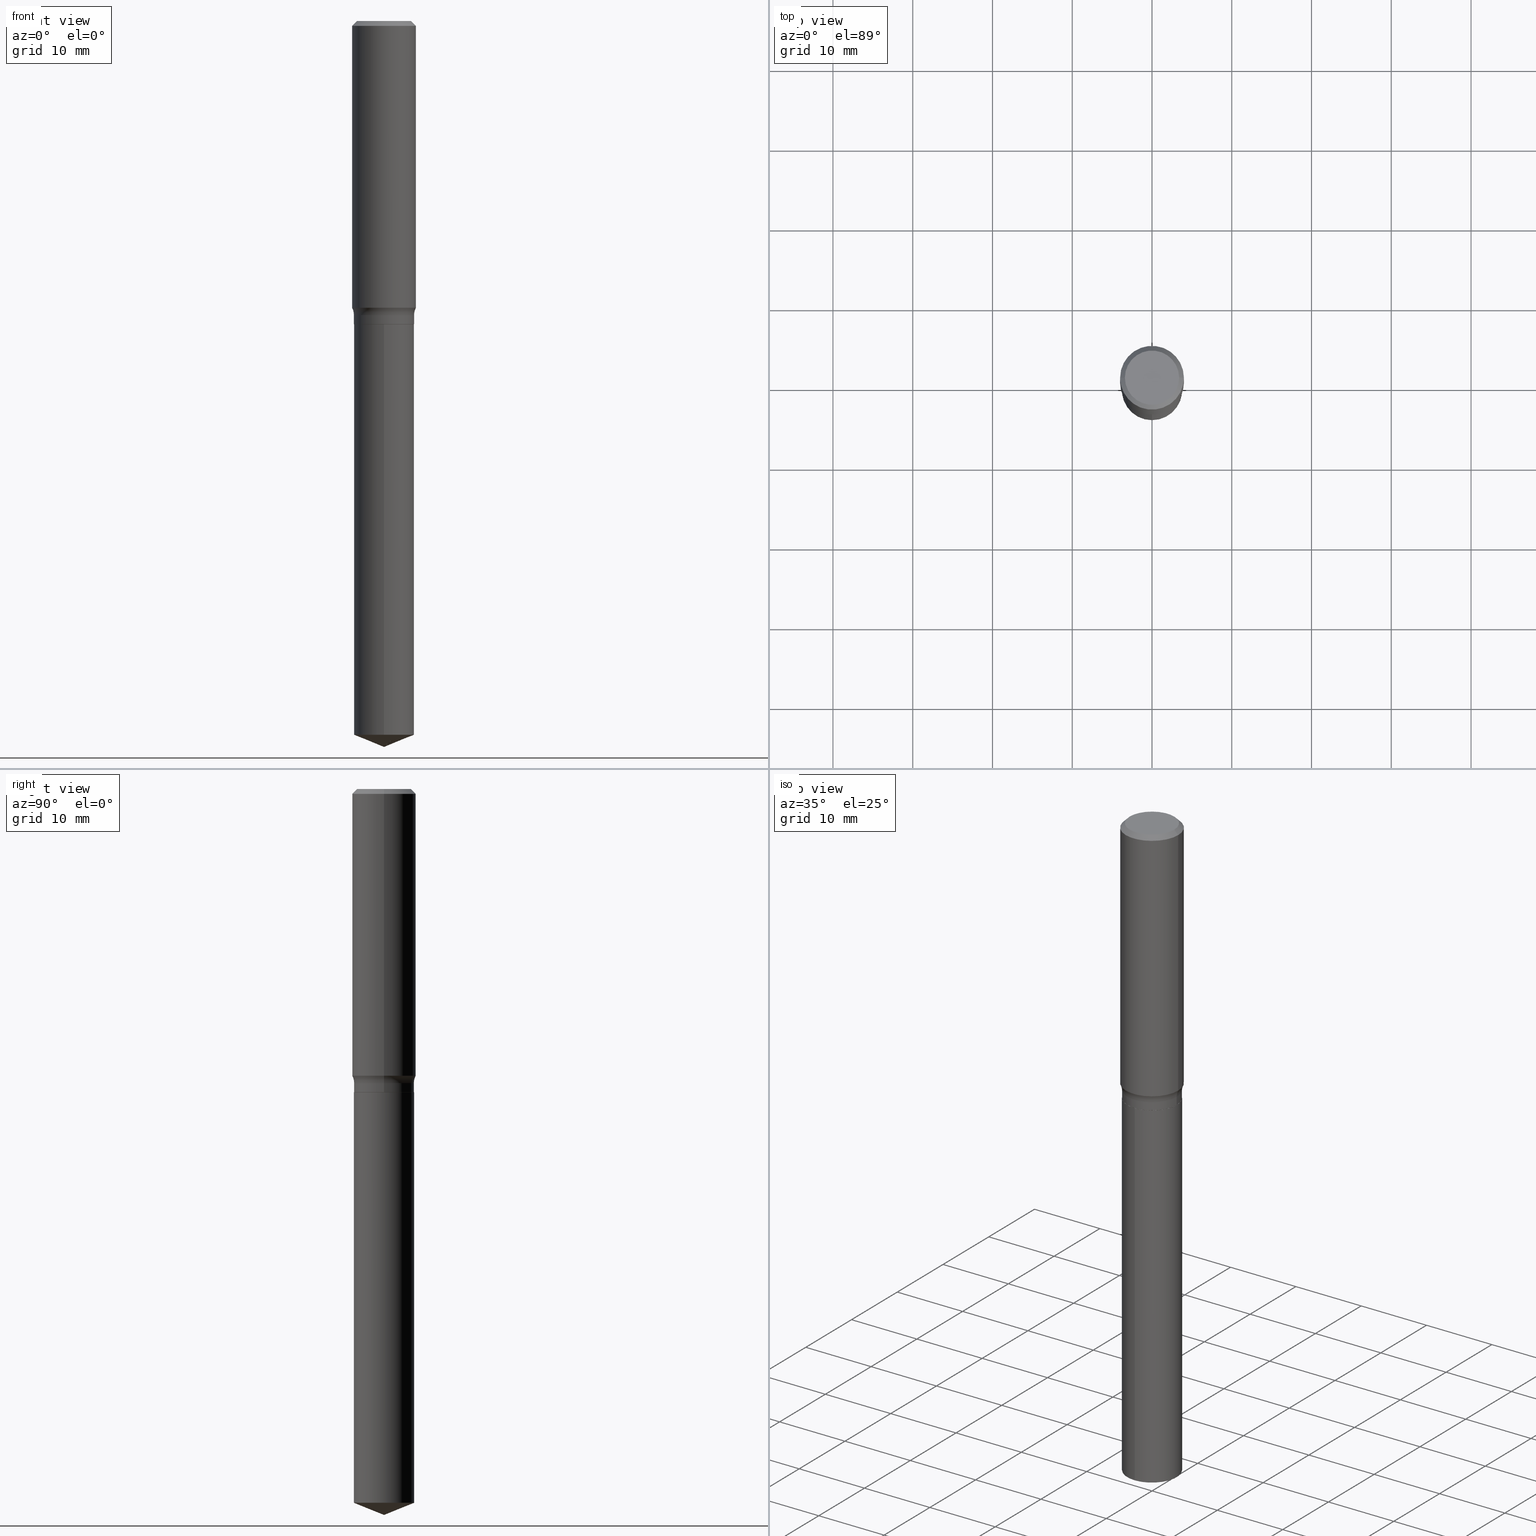
[diagram: canonical four-view strip — front | top / right | iso, engineering-drawing reading convention]
A machine part, canonical four-view strip (front | top / right | iso — engineering-drawing reading convention). The complete STEP part file that produces these views, byte-faithful:
ISO-10303-21;
HEADER;
FILE_DESCRIPTION (( 'STEP AP203' ),
    '1' );
FILE_NAME ('56850.STEP',
    '2024-04-19T14:25:47',
    ( '' ),
    ( '' ),
    'SwSTEP 2.0',
    'SolidWorks 2023',
    '' );
FILE_SCHEMA (( 'CONFIG_CONTROL_DESIGN' ));
ENDSEC;

DATA;
#1 = DIRECTION ( 'NONE',  ( -2.445316723279100245E-29, 3.491699130220610945E-15, 1.000000000000000000 ) ) ;
#2 = AXIS2_PLACEMENT_3D ( 'NONE', #449, #270, #80 ) ;
#3 = CC_DESIGN_APPROVAL ( #16, ( #492 ) ) ;
#4 = LINE ( 'NONE', #218, #61 ) ;
#5 = CLOSED_SHELL ( 'NONE', ( #287, #143, #436, #40, #346 ) ) ;
#6 = AXIS2_PLACEMENT_3D ( 'NONE', #216, #358, #357 ) ;
#7 = CONICAL_SURFACE ( 'NONE', #453, 0.1479499999999999982, 0.7853981633972775267 ) ;
#8 = DIRECTION ( 'NONE',  ( -2.445316723279100245E-29, 3.491699130220610945E-15, 1.000000000000000000 ) ) ;
#9 = ADVANCED_FACE ( 'NONE', ( #11 ), #340, .F. ) ;
#10 = APPROVAL_PERSON_ORGANIZATION ( #404, #16, #284 ) ;
#11 = FACE_OUTER_BOUND ( 'NONE', #373, .T. ) ;
#12 = APPROVAL_STATUS ( 'not_yet_approved' ) ;
#13 = ORIENTED_EDGE ( 'NONE', *, *, #384, .T. ) ;
#14 = CARTESIAN_POINT ( 'NONE',  ( 1.729969723805020089E-29, -7.987705962176350998E-15, -1.496400000000000396 ) ) ;
#15 = COORDINATED_UNIVERSAL_TIME_OFFSET ( 5, 0, .BEHIND. ) ;
#16 = APPROVAL ( #65, 'UNSPECIFIED' ) ;
#17 = DIRECTION ( 'NONE',  ( -2.445468806185136597E-29, 3.491481338843145583E-15, 1.000000000000000000 ) ) ;
#18 = ORIENTED_EDGE ( 'NONE', *, *, #52, .F. ) ;
#19 = CIRCLE ( 'NONE', #344, 0.1575000000000001676 ) ;
#20 = CARTESIAN_POINT ( 'NONE',  ( 3.659399521575439863E-29, -5.224652675444884140E-15, -1.496400000000000396 ) ) ;
#21 = LOCAL_TIME ( 10, 25, 47.00000000000000000, #276 ) ;
#22 = DIRECTION ( 'NONE',  ( 1.000000000000000000, -6.982962677686267499E-15, 4.876176775795936353E-29 ) ) ;
#23 = EDGE_CURVE ( 'NONE', #430, #179, #397, .T. ) ;
#24 = FACE_OUTER_BOUND ( 'NONE', #473, .T. ) ;
#25 = EDGE_LOOP ( 'NONE', ( #343, #134 ) ) ;
#26 = DIRECTION ( 'NONE',  ( 1.000000000000000000, -6.982962677686265133E-15, 0.000000000000000000 ) ) ;
#27 = FACE_OUTER_BOUND ( 'NONE', #426, .T. ) ;
#28 = ORIENTED_EDGE ( 'NONE', *, *, #410, .F. ) ;
#29 = DIRECTION ( 'NONE',  ( -2.445468806185136597E-29, 3.491481338843145583E-15, 1.000000000000000000 ) ) ;
#30 = AXIS2_PLACEMENT_3D ( 'NONE', #237, #49, #56 ) ;
#31 = ADVANCED_FACE ( 'NONE', ( #161 ), #412, .T. ) ;
#32 = CARTESIAN_POINT ( 'NONE',  ( 3.659399521575439863E-29, -5.224652675444884140E-15, -1.496400000000000396 ) ) ;
#33 = PLANE ( 'NONE',  #109 ) ;
#34 = CIRCLE ( 'NONE', #256, 0.1484499999999999986 ) ;
#35 = DIRECTION ( 'NONE',  ( 1.000000000000000000, -6.982962677686267499E-15, 0.000000000000000000 ) ) ;
#36 = CIRCLE ( 'NONE', #141, 0.1484499999999999986 ) ;
#37 = DIRECTION ( 'NONE',  ( -2.445468806185136597E-29, 3.491481338843145583E-15, 1.000000000000000000 ) ) ;
#38 = DIRECTION ( 'NONE',  ( 1.000000000000000000, 0.000000000000000000, 0.000000000000000000 ) ) ;
#39 = DIRECTION ( 'NONE',  ( 7.105427357601001859E-15, 1.000000000000000000, -3.491481338843145583E-15 ) ) ;
#40 = ADVANCED_FACE ( 'NONE', ( #279 ), #282, .T. ) ;
#41 = DIRECTION ( 'NONE',  ( -2.445468806185136877E-29, 3.491481338843145188E-15, 1.000000000000000000 ) ) ;
#42 = CIRCLE ( 'NONE', #60, 0.07800000000000002764 ) ;
#43 = LOCAL_TIME ( 10, 25, 47.00000000000000000, #75 ) ;
#44 = CC_DESIGN_DATE_AND_TIME_ASSIGNMENT ( #106, #275, ( #73 ) ) ;
#45 = CARTESIAN_POINT ( 'NONE',  ( 3.659399521575438742E-29, -5.224652675444883351E-15, -1.496400000000000174 ) ) ;
#46 = ORIENTED_EDGE ( 'NONE', *, *, #84, .F. ) ;
#47 = APPROVAL_DATE_TIME ( #96, #100 ) ;
#48 = CIRCLE ( 'NONE', #307, 0.1484499999999999986 ) ;
#49 = DIRECTION ( 'NONE',  ( -2.445468806185136597E-29, 3.491481338843145583E-15, 1.000000000000000000 ) ) ;
#50 = LOCAL_TIME ( 10, 25, 47.00000000000000000, #441 ) ;
#51 = CARTESIAN_POINT ( 'NONE',  ( 3.659399521575439863E-29, -5.224652675444884140E-15, -1.496400000000000396 ) ) ;
#52 = EDGE_CURVE ( 'NONE', #253, #214, #423, .T. ) ;
#53 = DATE_AND_TIME ( #348, #50 ) ;
#54 = EDGE_LOOP ( 'NONE', ( #381, #454, #419, #46 ) ) ;
#55 = LINE ( 'NONE', #485, #71 ) ;
#56 = DIRECTION ( 'NONE',  ( 1.000000000000000000, -6.982962677686266711E-15, 4.876170806578254279E-29 ) ) ;
#57 = ORIENTED_EDGE ( 'NONE', *, *, #335, .T. ) ;
#58 = ORIENTED_EDGE ( 'NONE', *, *, #295, .F. ) ;
#59 = ORIENTED_EDGE ( 'NONE', *, *, #210, .T. ) ;
#60 = AXIS2_PLACEMENT_3D ( 'NONE', #300, #146, #399 ) ;
#61 = VECTOR ( 'NONE', #241, 39.37007874015748143 ) ;
#62 = FACE_OUTER_BOUND ( 'NONE', #83, .T. ) ;
#63 = ORIENTED_EDGE ( 'NONE', *, *, #330, .F. ) ;
#64 = CYLINDRICAL_SURFACE ( 'NONE', #147, 0.1575000000000000844 ) ;
#65 = APPROVAL_STATUS ( 'not_yet_approved' ) ;
#66 = CARTESIAN_POINT ( 'NONE',  ( -5.014852121625163022E-47, 7.159879756154476955E-33, 2.050671065172241055E-18 ) ) ;
#67 = AXIS2_PLACEMENT_3D ( 'NONE', #431, #17, #103 ) ;
#68 = EDGE_CURVE ( 'NONE', #102, #90, #120, .T. ) ;
#69 = CARTESIAN_POINT ( 'NONE',  ( 3.659399521575438742E-29, -5.224652675444883351E-15, -1.496400000000000174 ) ) ;
#70 = CC_DESIGN_PERSON_AND_ORGANIZATION_ASSIGNMENT ( #185, #133, ( #387 ) ) ;
#71 = VECTOR ( 'NONE', #225, 39.37007874015748143 ) ;
#72 = CARTESIAN_POINT ( 'NONE',  ( -0.1575000000000000844, 1.119104808822158392E-15, -7.747322767151481189E-30 ) ) ;
#73 = SECURITY_CLASSIFICATION ( '', '', #209 ) ;
#74 = CARTESIAN_POINT ( 'NONE',  ( 0.1575000000000000011, -1.182302868365756679E-15, -0.02362500000000014588 ) ) ;
#75 = COORDINATED_UNIVERSAL_TIME_OFFSET ( 5, 0, .BEHIND. ) ;
#76 = EDGE_CURVE ( 'NONE', #219, #208, #160, .T. ) ;
#77 = CIRCLE ( 'NONE', #30, 0.1338749999999999940 ) ;
#78 = ORIENTED_EDGE ( 'NONE', *, *, #263, .T. ) ;
#79 = DIRECTION ( 'NONE',  ( -2.445468806185136597E-29, 3.491481338843145583E-15, 1.000000000000000000 ) ) ;
#80 = DIRECTION ( 'NONE',  ( 1.000000000000000000, -6.982962677686265922E-15, 0.000000000000000000 ) ) ;
#81 = CARTESIAN_POINT ( 'NONE',  ( -0.1479499999999999982, -4.170755470713704530E-15, -1.496400000000000396 ) ) ;
#82 = VERTEX_POINT ( 'NONE', #331 ) ;
#83 = EDGE_LOOP ( 'NONE', ( #194, #163, #355, #383 ) ) ;
#84 = EDGE_CURVE ( 'NONE', #458, #389, #42, .T. ) ;
#85 = PERSON_AND_ORGANIZATION_ROLE ( 'classification_officer' ) ;
#86 = ORIENTED_EDGE ( 'NONE', *, *, #138, .T. ) ;
#87 = CYLINDRICAL_SURFACE ( 'NONE', #231, 0.1484499999999999986 ) ;
#88 = AXIS2_PLACEMENT_3D ( 'NONE', #199, #314, #327 ) ;
#89 = CC_DESIGN_APPROVAL ( #196, ( #387 ) ) ;
#90 = VERTEX_POINT ( 'NONE', #104 ) ;
#91 = DIRECTION ( 'NONE',  ( -6.982962677686266711E-15, -1.000000000000000000, 3.498761904101826769E-15 ) ) ;
#92 = DIRECTION ( 'NONE',  ( 1.000000000000000000, -6.982962677686265922E-15, 4.876176775795935793E-29 ) ) ;
#93 = ORIENTED_EDGE ( 'NONE', *, *, #312, .T. ) ;
#94 = ORIENTED_EDGE ( 'NONE', *, *, #178, .F. ) ;
#95 = DIRECTION ( 'NONE',  ( -2.445468806185136877E-29, 3.491481338843145188E-15, 1.000000000000000000 ) ) ;
#96 = DATE_AND_TIME ( #347, #326 ) ;
#97 = PLANE ( 'NONE',  #363 ) ;
#98 = ORIENTED_EDGE ( 'NONE', *, *, #376, .T. ) ;
#99 = UNCERTAINTY_MEASURE_WITH_UNIT (LENGTH_MEASURE( 1.000000000000000082E-05 ), #153, 'distance_accuracy_value', 'NONE');
#100 = APPROVAL ( #12, 'UNSPECIFIED' ) ;
#101 = TOROIDAL_SURFACE ( 'NONE', #200, 0.2264500000000000124, 0.07800000000000002764 ) ;
#102 = VERTEX_POINT ( 'NONE', #324 ) ;
#103 = DIRECTION ( 'NONE',  ( 1.000000000000000000, -6.982962677686268288E-15, 0.000000000000000000 ) ) ;
#104 = CARTESIAN_POINT ( 'NONE',  ( -0.1484499999999999986, -4.090595357817275415E-15, -1.451500000000000012 ) ) ;
#105 = FACE_OUTER_BOUND ( 'NONE', #221, .T. ) ;
#106 = DATE_AND_TIME ( #315, #130 ) ;
#107 = DIRECTION ( 'NONE',  ( 1.000000000000000000, -6.982962677686265922E-15, 0.000000000000000000 ) ) ;
#108 = DIRECTION ( 'NONE',  ( 1.000000000000000000, -6.982962677686265133E-15, 4.876176775795935793E-29 ) ) ;
#109 = AXIS2_PLACEMENT_3D ( 'NONE', #66, #292, #140 ) ;
#110 = ADVANCED_FACE ( 'NONE', ( #252 ), #33, .F. ) ;
#111 = ADVANCED_FACE ( 'NONE', ( #62 ), #368, .T. ) ;
#112 = CARTESIAN_POINT ( 'NONE',  ( 0.000000000000000000, 0.000000000000000000, 0.000000000000000000 ) ) ;
#113 = CARTESIAN_POINT ( 'NONE',  ( 8.615132940102252815E-29, -1.230100802129604033E-14, -3.523022306774771018 ) ) ;
#114 = CARTESIAN_POINT ( 'NONE',  ( 3.460417203317335533E-29, -4.940558660750950028E-15, -1.415032240266229424 ) ) ;
#115 = CONICAL_SURFACE ( 'NONE', #247, 97.44436430772844915, 1.186823891356145078 ) ;
#116 = DIRECTION ( 'NONE',  ( -2.445316723279100526E-29, 3.491699130220610945E-15, 1.000000000000000000 ) ) ;
#117 = EDGE_LOOP ( 'NONE', ( #157, #240, #456, #320 ) ) ;
#118 = DIRECTION ( 'NONE',  ( 1.000000000000000000, -6.982962677686265133E-15, 0.000000000000000000 ) ) ;
#119 = DIRECTION ( 'NONE',  ( -2.438088387897960049E-29, 3.491481338843145188E-15, 1.000000000000000000 ) ) ;
#120 = CIRCLE ( 'NONE', #220, 0.07800000000000002764 ) ;
#121 = DIRECTION ( 'NONE',  ( -2.445316723279100245E-29, 3.491699130220610945E-15, 1.000000000000000000 ) ) ;
#122 = EDGE_CURVE ( 'NONE', #236, #82, #186, .T. ) ;
#123 = DIRECTION ( 'NONE',  ( 1.000000000000000000, -6.982962677686266711E-15, 4.876170806578254279E-29 ) ) ;
#124 = DIRECTION ( 'NONE',  ( 2.445468806185136597E-29, -3.491481338843145583E-15, -1.000000000000000000 ) ) ;
#125 = DIRECTION ( 'NONE',  ( -2.445468806185136877E-29, 3.491481338843145188E-15, 1.000000000000000000 ) ) ;
#126 = ORIENTED_EDGE ( 'NONE', *, *, #122, .F. ) ;
#127 = CARTESIAN_POINT ( 'NONE',  ( 3.659399521575438742E-29, -5.224652675444883351E-15, -1.496400000000000174 ) ) ;
#128 = SHAPE_DEFINITION_REPRESENTATION ( #371, #264 ) ;
#129 = CIRCLE ( 'NONE', #425, 0.1479499999999999982 ) ;
#130 = LOCAL_TIME ( 10, 25, 47.00000000000000000, #15 ) ;
#131 = ORIENTED_EDGE ( 'NONE', *, *, #467, .F. ) ;
#132 = ORIENTED_EDGE ( 'NONE', *, *, #263, .F. ) ;
#133 = PERSON_AND_ORGANIZATION_ROLE ( 'design_supplier' ) ;
#134 = ORIENTED_EDGE ( 'NONE', *, *, #178, .T. ) ;
#135 = CC_DESIGN_DATE_AND_TIME_ASSIGNMENT ( #166, #206, ( #492 ) ) ;
#136 = DIRECTION ( 'NONE',  ( -2.445468806185136597E-29, 3.491481338843145583E-15, 1.000000000000000000 ) ) ;
#137 = ORIENTED_EDGE ( 'NONE', *, *, #84, .T. ) ;
#138 = EDGE_CURVE ( 'NONE', #389, #90, #299, .T. ) ;
#139 = VECTOR ( 'NONE', #125, 39.37007874015748143 ) ;
#140 = DIRECTION ( 'NONE',  ( -1.000000000000000000, 6.982962677686265922E-15, -4.876176775795935793E-29 ) ) ;
#141 = AXIS2_PLACEMENT_3D ( 'NONE', #230, #447, #268 ) ;
#142 = ORIENTED_EDGE ( 'NONE', *, *, #410, .T. ) ;
#143 = ADVANCED_FACE ( 'NONE', ( #24 ), #115, .T. ) ;
#144 = VERTEX_POINT ( 'NONE', #365 ) ;
#145 = DIRECTION ( 'NONE',  ( -2.445316723279100245E-29, 3.491699130220610945E-15, 1.000000000000000000 ) ) ;
#146 = DIRECTION ( 'NONE',  ( -6.982962677686266711E-15, -1.000000000000000000, 3.491481338843145583E-15 ) ) ;
#147 = AXIS2_PLACEMENT_3D ( 'NONE', #408, #354, #22 ) ;
#148 = ORIENTED_EDGE ( 'NONE', *, *, #330, .T. ) ;
#149 = AXIS2_PLACEMENT_3D ( 'NONE', #112, #260, #38 ) ;
#150 = CARTESIAN_POINT ( 'NONE',  ( 3.549597972177726133E-29, -5.067885163330826020E-15, -1.451500000000000012 ) ) ;
#151 = AXIS2_PLACEMENT_3D ( 'NONE', #45, #8, #155 ) ;
#152 =( GEOMETRIC_REPRESENTATION_CONTEXT ( 3 ) GLOBAL_UNCERTAINTY_ASSIGNED_CONTEXT ( ( #99 ) ) GLOBAL_UNIT_ASSIGNED_CONTEXT ( ( #153, #193, #251 ) ) REPRESENTATION_CONTEXT ( 'NONE', 'WORKASPACE' ) );
#153 =( CONVERSION_BASED_UNIT ( 'INCH', #192 ) LENGTH_UNIT ( ) NAMED_UNIT ( #304 ) );
#154 = CARTESIAN_POINT ( 'NONE',  ( -0.1484499999999999986, 1.054800691235868716E-15, -7.302159141483407353E-30 ) ) ;
#155 = DIRECTION ( 'NONE',  ( -6.982962677686265133E-15, -1.000000000000000000, 3.680495781292372402E-15 ) ) ;
#156 = CARTESIAN_POINT ( 'NONE',  ( 0.1575000000000000011, -1.163014681279185964E-15, -0.02362500000000014588 ) ) ;
#157 = ORIENTED_EDGE ( 'NONE', *, *, #312, .F. ) ;
#158 = ORIENTED_EDGE ( 'NONE', *, *, #467, .T. ) ;
#159 = CC_DESIGN_PERSON_AND_ORGANIZATION_ASSIGNMENT ( #188, #476, ( #492 ) ) ;
#160 = CIRCLE ( 'NONE', #88, 0.1484499999999999986 ) ;
#161 = FACE_OUTER_BOUND ( 'NONE', #278, .T. ) ;
#162 = CARTESIAN_POINT ( 'NONE',  ( 0.1479499999999999982, -6.257782003608567028E-15, -1.496400000000000396 ) ) ;
#163 = ORIENTED_EDGE ( 'NONE', *, *, #239, .T. ) ;
#164 = LINE ( 'NONE', #156, #289 ) ;
#165 = DIRECTION ( 'NONE',  ( -1.000000000000000000, 6.982962677686265922E-15, 0.000000000000000000 ) ) ;
#166 = DATE_AND_TIME ( #223, #43 ) ;
#167 = LINE ( 'NONE', #455, #337 ) ;
#168 = CARTESIAN_POINT ( 'NONE',  ( 5.777420054612421104E-31, -8.248624663016984002E-17, -0.02362500000000014588 ) ) ;
#169 = DIRECTION ( 'NONE',  ( 0.7071067811864267805, -2.468850131080992517E-15, 0.7071067811866682540 ) ) ;
#170 = PERSON_AND_ORGANIZATION ( #308, #338 ) ;
#171 = VECTOR ( 'NONE', #254, 39.37007874015748143 ) ;
#172 = ADVANCED_FACE ( 'NONE', ( #27 ), #402, .T. ) ;
#173 = ORIENTED_EDGE ( 'NONE', *, *, #249, .F. ) ;
#174 = CARTESIAN_POINT ( 'NONE',  ( 0.1484499999999999986, -6.259527744277988532E-15, -1.495900000000000230 ) ) ;
#175 = ORIENTED_EDGE ( 'NONE', *, *, #409, .T. ) ;
#176 = CARTESIAN_POINT ( 'NONE',  ( 3.549597972177726133E-29, -5.067885163330826020E-15, -1.451500000000000012 ) ) ;
#177 = ORIENTED_EDGE ( 'NONE', *, *, #295, .T. ) ;
#178 = EDGE_CURVE ( 'NONE', #179, #430, #34, .T. ) ;
#179 = VERTEX_POINT ( 'NONE', #440 ) ;
#180 = AXIS2_PLACEMENT_3D ( 'NONE', #361, #246, #107 ) ;
#181 = DIRECTION ( 'NONE',  ( -6.474490251793179418E-15, -0.9271838545667864251, 0.3746065934159143462 ) ) ;
#182 = ORIENTED_EDGE ( 'NONE', *, *, #446, .T. ) ;
#183 = APPROVAL_PERSON_ORGANIZATION ( #170, #100, #465 ) ;
#184 = CARTESIAN_POINT ( 'NONE',  ( 5.777420054612421104E-31, -8.248624663016984002E-17, -0.02362500000000014588 ) ) ;
#185 = PERSON_AND_ORGANIZATION ( #308, #338 ) ;
#186 = LINE ( 'NONE', #443, #333 ) ;
#187 = CARTESIAN_POINT ( 'NONE',  ( 3.460417203317335533E-29, -4.940558660750950028E-15, -1.415032240266229424 ) ) ;
#188 = PERSON_AND_ORGANIZATION ( #308, #338 ) ;
#189 = CONICAL_SURFACE ( 'NONE', #483, 0.1575000000000000011, 0.7853981633974449483 ) ;
#190 = DIRECTION ( 'NONE',  ( 1.000000000000000000, -6.982962677686268288E-15, 4.883557194083113462E-29 ) ) ;
#191 = FACE_OUTER_BOUND ( 'NONE', #54, .T. ) ;
#192 = LENGTH_MEASURE_WITH_UNIT ( LENGTH_MEASURE( 0.02539999999999999897 ), #261 );
#193 =( NAMED_UNIT ( * ) PLANE_ANGLE_UNIT ( ) SI_UNIT ( $, .RADIAN. ) );
#194 = ORIENTED_EDGE ( 'NONE', *, *, #226, .T. ) ;
#195 = LINE ( 'NONE', #420, #205 ) ;
#196 = APPROVAL ( #297, 'UNSPECIFIED' ) ;
#197 = DIRECTION ( 'NONE',  ( -1.000000000000000000, 6.982962677686265922E-15, 0.000000000000000000 ) ) ;
#198 = CARTESIAN_POINT ( 'NONE',  ( 1.054800691235905201E-15, 0.1484499999999947528, -1.496400000000000841 ) ) ;
#199 = CARTESIAN_POINT ( 'NONE',  ( 3.658176787172346501E-29, -5.222906934775461847E-15, -1.495900000000000230 ) ) ;
#200 = AXIS2_PLACEMENT_3D ( 'NONE', #302, #444, #414 ) ;
#201 = ORIENTED_EDGE ( 'NONE', *, *, #384, .F. ) ;
#202 = ADVANCED_FACE ( 'NONE', ( #257 ), #64, .T. ) ;
#203 = ORIENTED_EDGE ( 'NONE', *, *, #239, .F. ) ;
#204 = ORIENTED_EDGE ( 'NONE', *, *, #421, .F. ) ;
#205 = VECTOR ( 'NONE', #169, 39.37007874015748143 ) ;
#206 = DATE_TIME_ROLE ( 'creation_date' ) ;
#207 = LINE ( 'NONE', #198, #334 ) ;
#208 = VERTEX_POINT ( 'NONE', #174 ) ;
#209 = SECURITY_CLASSIFICATION_LEVEL ( 'unclassified' ) ;
#210 = EDGE_CURVE ( 'NONE', #208, #219, #48, .T. ) ;
#211 = DIRECTION ( 'NONE',  ( -2.445316723279100245E-29, 3.491699130220610945E-15, 1.000000000000000000 ) ) ;
#212 = ADVANCED_FACE ( 'NONE', ( #432 ), #101, .F. ) ;
#213 = ORIENTED_EDGE ( 'NONE', *, *, #76, .T. ) ;
#214 = VERTEX_POINT ( 'NONE', #74 ) ;
#215 = CIRCLE ( 'NONE', #67, 0.1484499999999999986 ) ;
#216 = CARTESIAN_POINT ( 'NONE',  ( 0.000000000000000000, 0.000000000000000000, 0.000000000000000000 ) ) ;
#217 = ORIENTED_EDGE ( 'NONE', *, *, #339, .F. ) ;
#218 = CARTESIAN_POINT ( 'NONE',  ( -0.1575000000000000011, 1.017330375105417098E-15, -0.02362500000000014588 ) ) ;
#219 = VERTEX_POINT ( 'NONE', #375 ) ;
#220 = AXIS2_PLACEMENT_3D ( 'NONE', #233, #39, #377 ) ;
#221 = EDGE_LOOP ( 'NONE', ( #58, #217, #291, #309 ) ) ;
#222 = TOROIDAL_SURFACE ( 'NONE', #413, 0.2264500000000000124, 0.07800000000000002764 ) ;
#223 = CALENDAR_DATE ( 2024, 19, 4 ) ;
#224 = CARTESIAN_POINT ( 'NONE',  ( -8.751051454375244487E-28, 1.249580376131616376E-13, 35.78707874015748303 ) ) ;
#225 = DIRECTION ( 'NONE',  ( -0.7071067811864267805, 7.493145998869918709E-15, 0.7071067811866682540 ) ) ;
#226 = EDGE_CURVE ( 'NONE', #458, #102, #319, .T. ) ;
#227 = CIRCLE ( 'NONE', #280, 0.1484499999999999986 ) ;
#228 = VECTOR ( 'NONE', #235, 39.37007874015748143 ) ;
#229 = APPLICATION_CONTEXT ( 'configuration controlled 3d designs of mechanical parts and assemblies' ) ;
#230 = CARTESIAN_POINT ( 'NONE',  ( 8.615132940102252815E-29, -1.230100802129604033E-14, -3.523022306774771018 ) ) ;
#231 = AXIS2_PLACEMENT_3D ( 'NONE', #232, #478, #255 ) ;
#232 = CARTESIAN_POINT ( 'NONE',  ( 0.000000000000000000, 0.000000000000000000, 0.000000000000000000 ) ) ;
#233 = CARTESIAN_POINT ( 'NONE',  ( -0.2264500000000000124, -3.458861138202079258E-15, -1.451500000000000012 ) ) ;
#234 = EDGE_CURVE ( 'NONE', #82, #305, #227, .T. ) ;
#235 = DIRECTION ( 'NONE',  ( 6.588037525764791291E-15, 0.9271838545667890896, 0.3746065934159079069 ) ) ;
#236 = VERTEX_POINT ( 'NONE', #411 ) ;
#237 = CARTESIAN_POINT ( 'NONE',  ( -1.002970424325032604E-46, 1.431975951230895391E-32, 4.101342130344482109E-18 ) ) ;
#238 = AXIS2_PLACEMENT_3D ( 'NONE', #176, #243, #491 ) ;
#239 = EDGE_CURVE ( 'NONE', #102, #253, #374, .T. ) ;
#240 = ORIENTED_EDGE ( 'NONE', *, *, #249, .T. ) ;
#241 = DIRECTION ( 'NONE',  ( -0.7071067811865451302, 2.468850131082231817E-15, -0.7071067811865499042 ) ) ;
#242 = EDGE_CURVE ( 'NONE', #244, #208, #195, .T. ) ;
#243 = DIRECTION ( 'NONE',  ( -2.445468806185136597E-29, 3.491481338843145583E-15, 1.000000000000000000 ) ) ;
#244 = VERTEX_POINT ( 'NONE', #162 ) ;
#245 = MECHANICAL_CONTEXT ( 'NONE', #229, 'mechanical' ) ;
#246 = DIRECTION ( 'NONE',  ( -2.445468806185136597E-29, 3.491481338843145583E-15, 1.000000000000000000 ) ) ;
#247 = AXIS2_PLACEMENT_3D ( 'NONE', #224, #474, #394 ) ;
#248 = CC_DESIGN_SECURITY_CLASSIFICATION ( #73, ( #387 ) ) ;
#249 = EDGE_CURVE ( 'NONE', #250, #244, #434, .T. ) ;
#250 = VERTEX_POINT ( 'NONE', #81 ) ;
#251 =( NAMED_UNIT ( * ) SI_UNIT ( $, .STERADIAN. ) SOLID_ANGLE_UNIT ( ) );
#252 = FACE_OUTER_BOUND ( 'NONE', #345, .T. ) ;
#253 = VERTEX_POINT ( 'NONE', #392 ) ;
#254 = DIRECTION ( 'NONE',  ( -2.445316723279100526E-29, 3.491699130220610945E-15, 1.000000000000000000 ) ) ;
#255 = DIRECTION ( 'NONE',  ( 1.000000000000000000, -6.982962677686265133E-15, 4.876176775795935793E-29 ) ) ;
#256 = AXIS2_PLACEMENT_3D ( 'NONE', #69, #145, #296 ) ;
#257 = FACE_OUTER_BOUND ( 'NONE', #359, .T. ) ;
#258 = PERSON_AND_ORGANIZATION ( #308, #338 ) ;
#259 = CC_DESIGN_PERSON_AND_ORGANIZATION_ASSIGNMENT ( #283, #85, ( #73 ) ) ;
#260 = DIRECTION ( 'NONE',  ( 0.000000000000000000, 0.000000000000000000, 1.000000000000000000 ) ) ;
#261 =( LENGTH_UNIT ( ) NAMED_UNIT ( * ) SI_UNIT ( $, .METRE. ) );
#262 = DIRECTION ( 'NONE',  ( -6.982962677686265133E-15, -1.000000000000000000, 3.680495781292372402E-15 ) ) ;
#263 = EDGE_CURVE ( 'NONE', #82, #430, #401, .T. ) ;
#264 = ADVANCED_BREP_SHAPE_REPRESENTATION ( '56850', ( #490, #484, #149 ), #152 ) ;
#265 = VECTOR ( 'NONE', #273, 39.37007874015748143 ) ;
#266 = CARTESIAN_POINT ( 'NONE',  ( -0.1338749999999999940, 9.760872517903331886E-16, 4.101342130337800673E-18 ) ) ;
#267 = APPLICATION_PROTOCOL_DEFINITION ( 'international standard', 'config_control_design', 1994, #301 ) ;
#268 = DIRECTION ( 'NONE',  ( -6.982962677686265133E-15, -1.000000000000000000, 3.680495781292372402E-15 ) ) ;
#269 = AXIS2_PLACEMENT_3D ( 'NONE', #14, #119, #92 ) ;
#270 = DIRECTION ( 'NONE',  ( -2.445468806185136597E-29, 3.491481338843145583E-15, 1.000000000000000000 ) ) ;
#271 = CARTESIAN_POINT ( 'NONE',  ( 0.1575000000000001676, -6.040375282486537508E-15, -1.415032240266229424 ) ) ;
#272 = LINE ( 'NONE', #448, #228 ) ;
#273 = DIRECTION ( 'NONE',  ( -2.445468806185136877E-29, 3.491481338843145188E-15, 1.000000000000000000 ) ) ;
#274 = ORIENTED_EDGE ( 'NONE', *, *, #369, .F. ) ;
#275 = DATE_TIME_ROLE ( 'classification_date' ) ;
#276 = COORDINATED_UNIVERSAL_TIME_OFFSET ( 5, 0, .BEHIND. ) ;
#277 = EDGE_CURVE ( 'NONE', #214, #253, #417, .T. ) ;
#278 = EDGE_LOOP ( 'NONE', ( #385, #177, #356, #204 ) ) ;
#279 = FACE_OUTER_BOUND ( 'NONE', #400, .T. ) ;
#280 = AXIS2_PLACEMENT_3D ( 'NONE', #113, #1, #262 ) ;
#281 = CALENDAR_DATE ( 2024, 19, 4 ) ;
#282 = CYLINDRICAL_SURFACE ( 'NONE', #151, 0.1484499999999999986 ) ;
#283 = PERSON_AND_ORGANIZATION ( #308, #338 ) ;
#284 = APPROVAL_ROLE ( '' ) ;
#285 = DIRECTION ( 'NONE',  ( -6.982962677686265133E-15, -1.000000000000000000, 3.680495781292372402E-15 ) ) ;
#286 = ORIENTED_EDGE ( 'NONE', *, *, #122, .T. ) ;
#287 = ADVANCED_FACE ( 'NONE', ( #313 ), #479, .T. ) ;
#288 = DIRECTION ( 'NONE',  ( 1.000000000000000000, -6.982962677686268288E-15, 0.000000000000000000 ) ) ;
#289 = VECTOR ( 'NONE', #450, 39.37007874015748143 ) ;
#290 = APPROVAL_PERSON_ORGANIZATION ( #258, #196, #489 ) ;
#291 = ORIENTED_EDGE ( 'NONE', *, *, #421, .T. ) ;
#292 = DIRECTION ( 'NONE',  ( 2.438088387897960049E-29, -3.491481338843145188E-15, -1.000000000000000000 ) ) ;
#293 = EDGE_LOOP ( 'NONE', ( #28, #286, #336 ) ) ;
#294 = DIRECTION ( 'NONE',  ( 1.000000000000000000, -6.982962677686265133E-15, 0.000000000000000000 ) ) ;
#295 = EDGE_CURVE ( 'NONE', #144, #214, #164, .T. ) ;
#296 = DIRECTION ( 'NONE',  ( -6.982962677686265133E-15, -1.000000000000000000, 3.680495781292372402E-15 ) ) ;
#297 = APPROVAL_STATUS ( 'not_yet_approved' ) ;
#298 = PRODUCT_RELATED_PRODUCT_CATEGORY ( 'detail', '', ( #367 ) ) ;
#299 = CIRCLE ( 'NONE', #238, 0.1484499999999999986 ) ;
#300 = CARTESIAN_POINT ( 'NONE',  ( 0.2264500000000000124, -6.649177061692880750E-15, -1.451500000000000012 ) ) ;
#301 = APPLICATION_CONTEXT ( 'configuration controlled 3d designs of mechanical parts and assemblies' ) ;
#302 = CARTESIAN_POINT ( 'NONE',  ( 3.549597972177726133E-29, -5.067885163330826020E-15, -1.451500000000000012 ) ) ;
#303 = PERSON_AND_ORGANIZATION_ROLE ( 'design_owner' ) ;
#304 = DIMENSIONAL_EXPONENTS ( 1.000000000000000000, 0.000000000000000000, 0.000000000000000000, 0.000000000000000000, 0.000000000000000000, 0.000000000000000000, 0.000000000000000000 ) ;
#305 = VERTEX_POINT ( 'NONE', #457 ) ;
#306 = ADVANCED_FACE ( 'NONE', ( #382 ), #87, .T. ) ;
#307 = AXIS2_PLACEMENT_3D ( 'NONE', #322, #136, #288 ) ;
#308 = PERSON ( 'UNSPECIFIED', 'UNSPECIFIED', 'UNSPECIFIED', ('UNSPECIFIED'), ('UNSPECIFIED'), ('UNSPECIFIED') ) ;
#309 = ORIENTED_EDGE ( 'NONE', *, *, #52, .T. ) ;
#310 = ORIENTED_EDGE ( 'NONE', *, *, #23, .F. ) ;
#311 = PERSON_AND_ORGANIZATION ( #308, #338 ) ;
#312 = EDGE_CURVE ( 'NONE', #250, #219, #55, .T. ) ;
#313 = FACE_OUTER_BOUND ( 'NONE', #437, .T. ) ;
#314 = DIRECTION ( 'NONE',  ( -2.445468806185136597E-29, 3.491481338843145583E-15, 1.000000000000000000 ) ) ;
#315 = CALENDAR_DATE ( 2024, 19, 4 ) ;
#316 = FACE_OUTER_BOUND ( 'NONE', #25, .T. ) ;
#317 = FACE_OUTER_BOUND ( 'NONE', #117, .T. ) ;
#318 = APPLICATION_PROTOCOL_DEFINITION ( 'international standard', 'config_control_design', 1994, #229 ) ;
#319 = CIRCLE ( 'NONE', #370, 0.1575000000000001676 ) ;
#320 = ORIENTED_EDGE ( 'NONE', *, *, #76, .F. ) ;
#321 = CARTESIAN_POINT ( 'NONE',  ( -1.036620809502489411E-15, -0.1484500000000052167, -1.496399999999999730 ) ) ;
#322 = CARTESIAN_POINT ( 'NONE',  ( 3.658176787172346501E-29, -5.222906934775461847E-15, -1.495900000000000230 ) ) ;
#323 = EDGE_CURVE ( 'NONE', #102, #458, #19, .T. ) ;
#324 = CARTESIAN_POINT ( 'NONE',  ( -0.1575000000000001676, -3.821453851928791636E-15, -1.415032240266229424 ) ) ;
#325 = AXIS2_PLACEMENT_3D ( 'NONE', #329, #211, #285 ) ;
#326 = LOCAL_TIME ( 10, 25, 47.00000000000000000, #429 ) ;
#327 = DIRECTION ( 'NONE',  ( 1.000000000000000000, -6.982962677686268288E-15, 0.000000000000000000 ) ) ;
#328 = CARTESIAN_POINT ( 'NONE',  ( -1.036620809502489411E-15, -0.1484500000000052167, -1.496399999999999730 ) ) ;
#329 = CARTESIAN_POINT ( 'NONE',  ( 3.659399521575438742E-29, -5.224652675444883351E-15, -1.496400000000000174 ) ) ;
#330 = EDGE_CURVE ( 'NONE', #208, #389, #407, .T. ) ;
#331 = CARTESIAN_POINT ( 'NONE',  ( -1.036620809502439910E-15, -0.1484500000000122666, -3.523022306774770573 ) ) ;
#332 = DIRECTION ( 'NONE',  ( 2.445468806185136597E-29, -3.491481338843145583E-15, -1.000000000000000000 ) ) ;
#333 = VECTOR ( 'NONE', #181, 39.37007874015748854 ) ;
#334 = VECTOR ( 'NONE', #116, 39.37007874015748143 ) ;
#335 = EDGE_CURVE ( 'NONE', #144, #471, #386, .T. ) ;
#336 = ORIENTED_EDGE ( 'NONE', *, *, #409, .F. ) ;
#337 = VECTOR ( 'NONE', #95, 39.37007874015748143 ) ;
#338 = ORGANIZATION ( 'UNSPECIFIED', 'UNSPECIFIED', '' ) ;
#339 = EDGE_CURVE ( 'NONE', #471, #144, #77, .T. ) ;
#340 = PLANE ( 'NONE',  #269 ) ;
#341 = DIRECTION ( 'NONE',  ( 1.000000000000000000, -6.982962677686265133E-15, 0.000000000000000000 ) ) ;
#342 = CARTESIAN_POINT ( 'NONE',  ( 3.659399521575439863E-29, -5.224652675444884140E-15, -1.496400000000000396 ) ) ;
#343 = ORIENTED_EDGE ( 'NONE', *, *, #23, .T. ) ;
#344 = AXIS2_PLACEMENT_3D ( 'NONE', #114, #29, #461 ) ;
#345 = EDGE_LOOP ( 'NONE', ( #470, #57 ) ) ;
#346 = ADVANCED_FACE ( 'NONE', ( #316 ), #97, .F. ) ;
#347 = CALENDAR_DATE ( 2024, 19, 4 ) ;
#348 = CALENDAR_DATE ( 2024, 19, 4 ) ;
#349 = CARTESIAN_POINT ( 'NONE',  ( 3.659399521575438742E-29, -5.224652675444883351E-15, -1.496400000000000174 ) ) ;
#350 = ORIENTED_EDGE ( 'NONE', *, *, #210, .F. ) ;
#351 = ORIENTED_EDGE ( 'NONE', *, *, #68, .F. ) ;
#352 = EDGE_LOOP ( 'NONE', ( #59, #182, #395, #63 ) ) ;
#353 = DIRECTION ( 'NONE',  ( 2.445316723279099965E-29, -3.491699130220610945E-15, -1.000000000000000000 ) ) ;
#354 = DIRECTION ( 'NONE',  ( -2.445468806185136597E-29, 3.491481338843145583E-15, 1.000000000000000000 ) ) ;
#355 = ORIENTED_EDGE ( 'NONE', *, *, #277, .F. ) ;
#356 = ORIENTED_EDGE ( 'NONE', *, *, #277, .T. ) ;
#357 = DIRECTION ( 'NONE',  ( 1.000000000000000000, -6.982962677686267499E-15, 4.876176775795936353E-29 ) ) ;
#358 = DIRECTION ( 'NONE',  ( -2.445468806185136597E-29, 3.491481338843145583E-15, 1.000000000000000000 ) ) ;
#359 = EDGE_LOOP ( 'NONE', ( #203, #462, #98, #18 ) ) ;
#360 = PERSON_AND_ORGANIZATION_ROLE ( 'creator' ) ;
#361 = CARTESIAN_POINT ( 'NONE',  ( 5.777420054612421104E-31, -8.248624663016984002E-17, -0.02362500000000014588 ) ) ;
#362 = CC_DESIGN_PERSON_AND_ORGANIZATION_ASSIGNMENT ( #464, #303, ( #367 ) ) ;
#363 = AXIS2_PLACEMENT_3D ( 'NONE', #349, #353, #480 ) ;
#364 = AXIS2_PLACEMENT_3D ( 'NONE', #32, #488, #294 ) ;
#365 = CARTESIAN_POINT ( 'NONE',  ( 0.1338749999999999940, -1.040731925365424925E-15, 4.101342130351390035E-18 ) ) ;
#366 = APPROVAL_DATE_TIME ( #53, #196 ) ;
#367 = PRODUCT ( '56850', '56850', '', ( #245 ) ) ;
#368 = CYLINDRICAL_SURFACE ( 'NONE', #6, 0.1575000000000000844 ) ;
#369 = EDGE_CURVE ( 'NONE', #90, #389, #215, .T. ) ;
#370 = AXIS2_PLACEMENT_3D ( 'NONE', #187, #372, #35 ) ;
#371 = PRODUCT_DEFINITION_SHAPE ( 'NONE', 'NONE',  #492 ) ;
#372 = DIRECTION ( 'NONE',  ( -2.445468806185136597E-29, 3.491481338843145583E-15, 1.000000000000000000 ) ) ;
#373 = EDGE_LOOP ( 'NONE', ( #201, #173 ) ) ;
#374 = LINE ( 'NONE', #72, #482 ) ;
#375 = CARTESIAN_POINT ( 'NONE',  ( -0.1484499999999999986, -4.090595357817275415E-15, -1.495900000000000230 ) ) ;
#376 = EDGE_CURVE ( 'NONE', #458, #214, #167, .T. ) ;
#377 = DIRECTION ( 'NONE',  ( -1.000000000000000000, 7.105427357601001859E-15, 0.000000000000000000 ) ) ;
#378 = AXIS2_PLACEMENT_3D ( 'NONE', #51, #427, #118 ) ;
#379 = ORIENTED_EDGE ( 'NONE', *, *, #234, .F. ) ;
#380 = ORIENTED_EDGE ( 'NONE', *, *, #242, .F. ) ;
#381 = ORIENTED_EDGE ( 'NONE', *, *, #323, .F. ) ;
#382 = FACE_OUTER_BOUND ( 'NONE', #352, .T. ) ;
#383 = ORIENTED_EDGE ( 'NONE', *, *, #376, .F. ) ;
#384 = EDGE_CURVE ( 'NONE', #244, #250, #129, .T. ) ;
#385 = ORIENTED_EDGE ( 'NONE', *, *, #335, .F. ) ;
#386 = CIRCLE ( 'NONE', #445, 0.1338749999999999940 ) ;
#387 = PRODUCT_DEFINITION_FORMATION_WITH_SPECIFIED_SOURCE ( 'ANY', '', #367, .NOT_KNOWN. ) ;
#388 = DATE_AND_TIME ( #281, #21 ) ;
#389 = VERTEX_POINT ( 'NONE', #439 ) ;
#390 = LINE ( 'NONE', #154, #265 ) ;
#391 = EDGE_LOOP ( 'NONE', ( #351, #451, #137, #86 ) ) ;
#392 = CARTESIAN_POINT ( 'NONE',  ( -0.1575000000000000011, -1.392417644868401320E-15, -0.02362500000000014588 ) ) ;
#393 = ADVANCED_FACE ( 'NONE', ( #406 ), #469, .T. ) ;
#394 = DIRECTION ( 'NONE',  ( -6.982962677686266711E-15, -1.000000000000000000, 3.498761904101826769E-15 ) ) ;
#395 = ORIENTED_EDGE ( 'NONE', *, *, #138, .F. ) ;
#396 = AXIS2_PLACEMENT_3D ( 'NONE', #127, #121, #422 ) ;
#397 = CIRCLE ( 'NONE', #396, 0.1484499999999999986 ) ;
#398 = DESIGN_CONTEXT ( 'detailed design', #301, 'design' ) ;
#399 = DIRECTION ( 'NONE',  ( 1.000000000000000000, -6.982962677686268288E-15, 0.000000000000000000 ) ) ;
#400 = EDGE_LOOP ( 'NONE', ( #131, #175, #78, #94 ) ) ;
#401 = LINE ( 'NONE', #328, #171 ) ;
#402 = CYLINDRICAL_SURFACE ( 'NONE', #468, 0.1484499999999999986 ) ;
#403 = ADVANCED_FACE ( 'NONE', ( #105 ), #189, .T. ) ;
#404 = PERSON_AND_ORGANIZATION ( #308, #338 ) ;
#405 = ORIENTED_EDGE ( 'NONE', *, *, #234, .T. ) ;
#406 = FACE_OUTER_BOUND ( 'NONE', #416, .T. ) ;
#407 = LINE ( 'NONE', #459, #139 ) ;
#408 = CARTESIAN_POINT ( 'NONE',  ( 0.000000000000000000, 0.000000000000000000, 0.000000000000000000 ) ) ;
#409 = EDGE_CURVE ( 'NONE', #305, #82, #36, .T. ) ;
#410 = EDGE_CURVE ( 'NONE', #236, #305, #272, .T. ) ;
#411 = CARTESIAN_POINT ( 'NONE',  ( 8.761569819509016808E-29, -1.251075798358044969E-14, -3.583000000000000185 ) ) ;
#412 = CONICAL_SURFACE ( 'NONE', #452, 0.1575000000000000011, 0.7853981633974449483 ) ;
#413 = AXIS2_PLACEMENT_3D ( 'NONE', #150, #37, #190 ) ;
#414 = DIRECTION ( 'NONE',  ( 1.000000000000000000, -6.982962677686268288E-15, 4.883557194083113462E-29 ) ) ;
#415 = ADVANCED_FACE ( 'NONE', ( #191 ), #222, .F. ) ;
#416 = EDGE_LOOP ( 'NONE', ( #13, #93, #350, #380 ) ) ;
#417 = CIRCLE ( 'NONE', #180, 0.1575000000000000011 ) ;
#418 = AXIS2_PLACEMENT_3D ( 'NONE', #472, #463, #91 ) ;
#419 = ORIENTED_EDGE ( 'NONE', *, *, #369, .T. ) ;
#420 = CARTESIAN_POINT ( 'NONE',  ( 0.1479499999999999982, -6.257782003608567028E-15, -1.496400000000000396 ) ) ;
#421 = EDGE_CURVE ( 'NONE', #471, #253, #4, .T. ) ;
#422 = DIRECTION ( 'NONE',  ( -6.982962677686265133E-15, -1.000000000000000000, 3.680495781292372402E-15 ) ) ;
#423 = CIRCLE ( 'NONE', #2, 0.1575000000000000011 ) ;
#424 = FACE_OUTER_BOUND ( 'NONE', #293, .T. ) ;
#425 = AXIS2_PLACEMENT_3D ( 'NONE', #342, #433, #341 ) ;
#426 = EDGE_LOOP ( 'NONE', ( #438, #213, #148, #274 ) ) ;
#427 = DIRECTION ( 'NONE',  ( -2.445468806185136597E-29, 3.491481338843145583E-15, 1.000000000000000000 ) ) ;
#428 = ADVANCED_FACE ( 'NONE', ( #317 ), #7, .T. ) ;
#429 = COORDINATED_UNIVERSAL_TIME_OFFSET ( 5, 0, .BEHIND. ) ;
#430 = VERTEX_POINT ( 'NONE', #321 ) ;
#431 = CARTESIAN_POINT ( 'NONE',  ( 3.549597972177726133E-29, -5.067885163330826020E-15, -1.451500000000000012 ) ) ;
#432 = FACE_OUTER_BOUND ( 'NONE', #391, .T. ) ;
#433 = DIRECTION ( 'NONE',  ( -2.445468806185136597E-29, 3.491481338843145583E-15, 1.000000000000000000 ) ) ;
#434 = CIRCLE ( 'NONE', #378, 0.1479499999999999982 ) ;
#435 = CONICAL_SURFACE ( 'NONE', #418, 97.44436430772844915, 1.186823891356145078 ) ;
#436 = ADVANCED_FACE ( 'NONE', ( #424 ), #435, .T. ) ;
#437 = EDGE_LOOP ( 'NONE', ( #405, #158, #310, #132 ) ) ;
#438 = ORIENTED_EDGE ( 'NONE', *, *, #446, .F. ) ;
#439 = CARTESIAN_POINT ( 'NONE',  ( 0.1484499999999999986, -6.104505972833352704E-15, -1.451500000000000012 ) ) ;
#440 = CARTESIAN_POINT ( 'NONE',  ( 1.054800691235955096E-15, 0.1484499999999947528, -1.496400000000000841 ) ) ;
#441 = COORDINATED_UNIVERSAL_TIME_OFFSET ( 5, 0, .BEHIND. ) ;
#442 = CC_DESIGN_APPROVAL ( #100, ( #73 ) ) ;
#443 = CARTESIAN_POINT ( 'NONE',  ( 8.761569819509015687E-29, -1.251075798358044653E-14, -3.583000000000000185 ) ) ;
#444 = DIRECTION ( 'NONE',  ( -2.445468806185136597E-29, 3.491481338843145583E-15, 1.000000000000000000 ) ) ;
#445 = AXIS2_PLACEMENT_3D ( 'NONE', #460, #79, #123 ) ;
#446 = EDGE_CURVE ( 'NONE', #219, #90, #390, .T. ) ;
#447 = DIRECTION ( 'NONE',  ( -2.445316723279100245E-29, 3.491699130220610945E-15, 1.000000000000000000 ) ) ;
#448 = CARTESIAN_POINT ( 'NONE',  ( 8.762028964391069882E-29, -1.251010617754597044E-14, -3.583000000000000185 ) ) ;
#449 = CARTESIAN_POINT ( 'NONE',  ( 5.777420054612421104E-31, -8.248624663016984002E-17, -0.02362500000000014588 ) ) ;
#450 = DIRECTION ( 'NONE',  ( 0.7071067811865451302, -7.319954787623248157E-15, -0.7071067811865499042 ) ) ;
#451 = ORIENTED_EDGE ( 'NONE', *, *, #226, .F. ) ;
#452 = AXIS2_PLACEMENT_3D ( 'NONE', #168, #124, #165 ) ;
#453 = AXIS2_PLACEMENT_3D ( 'NONE', #20, #475, #26 ) ;
#454 = ORIENTED_EDGE ( 'NONE', *, *, #68, .T. ) ;
#455 = CARTESIAN_POINT ( 'NONE',  ( 0.1575000000000000844, -1.099816621735587677E-15, 7.679978421878603638E-30 ) ) ;
#456 = ORIENTED_EDGE ( 'NONE', *, *, #242, .T. ) ;
#457 = CARTESIAN_POINT ( 'NONE',  ( 1.054800691235954505E-15, 0.1484499999999877029, -3.523022306774771906 ) ) ;
#458 = VERTEX_POINT ( 'NONE', #271 ) ;
#459 = CARTESIAN_POINT ( 'NONE',  ( 0.1484499999999999986, -1.036620809502526093E-15, 7.238684423669066410E-30 ) ) ;
#460 = CARTESIAN_POINT ( 'NONE',  ( -1.002970424325032604E-46, 1.431975951230895391E-32, 4.101342130344482109E-18 ) ) ;
#461 = DIRECTION ( 'NONE',  ( 1.000000000000000000, -6.982962677686267499E-15, 0.000000000000000000 ) ) ;
#462 = ORIENTED_EDGE ( 'NONE', *, *, #323, .T. ) ;
#463 = DIRECTION ( 'NONE',  ( -2.445316723279100245E-29, 3.491699130220610945E-15, 1.000000000000000000 ) ) ;
#464 = PERSON_AND_ORGANIZATION ( #308, #338 ) ;
#465 = APPROVAL_ROLE ( '' ) ;
#466 = CLOSED_SHELL ( 'NONE', ( #393, #31, #111, #415, #306, #172, #212, #202, #403, #110, #9, #428 ) ) ;
#467 = EDGE_CURVE ( 'NONE', #305, #179, #207, .T. ) ;
#468 = AXIS2_PLACEMENT_3D ( 'NONE', #487, #481, #108 ) ;
#469 = CONICAL_SURFACE ( 'NONE', #364, 0.1479499999999999982, 0.7853981633972775267 ) ;
#470 = ORIENTED_EDGE ( 'NONE', *, *, #339, .T. ) ;
#471 = VERTEX_POINT ( 'NONE', #266 ) ;
#472 = CARTESIAN_POINT ( 'NONE',  ( -8.751051454375244487E-28, 1.249580376131616376E-13, 35.78707874015748303 ) ) ;
#473 = EDGE_LOOP ( 'NONE', ( #126, #142, #379 ) ) ;
#474 = DIRECTION ( 'NONE',  ( -2.445316723279100245E-29, 3.491699130220610945E-15, 1.000000000000000000 ) ) ;
#475 = DIRECTION ( 'NONE',  ( -2.445468806185136597E-29, 3.491481338843145583E-15, 1.000000000000000000 ) ) ;
#476 = PERSON_AND_ORGANIZATION_ROLE ( 'creator' ) ;
#477 = CC_DESIGN_PERSON_AND_ORGANIZATION_ASSIGNMENT ( #311, #360, ( #387 ) ) ;
#478 = DIRECTION ( 'NONE',  ( -2.445468806185136597E-29, 3.491481338843145583E-15, 1.000000000000000000 ) ) ;
#479 = CYLINDRICAL_SURFACE ( 'NONE', #325, 0.1484499999999999986 ) ;
#480 = DIRECTION ( 'NONE',  ( 6.982962677686265922E-15, 1.000000000000000000, -3.491699130220610945E-15 ) ) ;
#481 = DIRECTION ( 'NONE',  ( -2.445468806185136597E-29, 3.491481338843145583E-15, 1.000000000000000000 ) ) ;
#482 = VECTOR ( 'NONE', #41, 39.37007874015748143 ) ;
#483 = AXIS2_PLACEMENT_3D ( 'NONE', #184, #332, #197 ) ;
#484 = MANIFOLD_SOLID_BREP ( 'Body-Move/Copy2[2]', #466 ) ;
#485 = CARTESIAN_POINT ( 'NONE',  ( -0.1479499999999999982, -4.173404697887816519E-15, -1.496400000000000396 ) ) ;
#486 = APPROVAL_DATE_TIME ( #388, #16 ) ;
#487 = CARTESIAN_POINT ( 'NONE',  ( 0.000000000000000000, 0.000000000000000000, 0.000000000000000000 ) ) ;
#488 = DIRECTION ( 'NONE',  ( -2.445468806185136597E-29, 3.491481338843145583E-15, 1.000000000000000000 ) ) ;
#489 = APPROVAL_ROLE ( '' ) ;
#490 = MANIFOLD_SOLID_BREP ( 'Body-Move/Copy2[1]', #5 ) ;
#491 = DIRECTION ( 'NONE',  ( 1.000000000000000000, -6.982962677686268288E-15, 0.000000000000000000 ) ) ;
#492 = PRODUCT_DEFINITION ( 'UNKNOWN', '', #387, #398 ) ;
ENDSEC;
END-ISO-10303-21;
